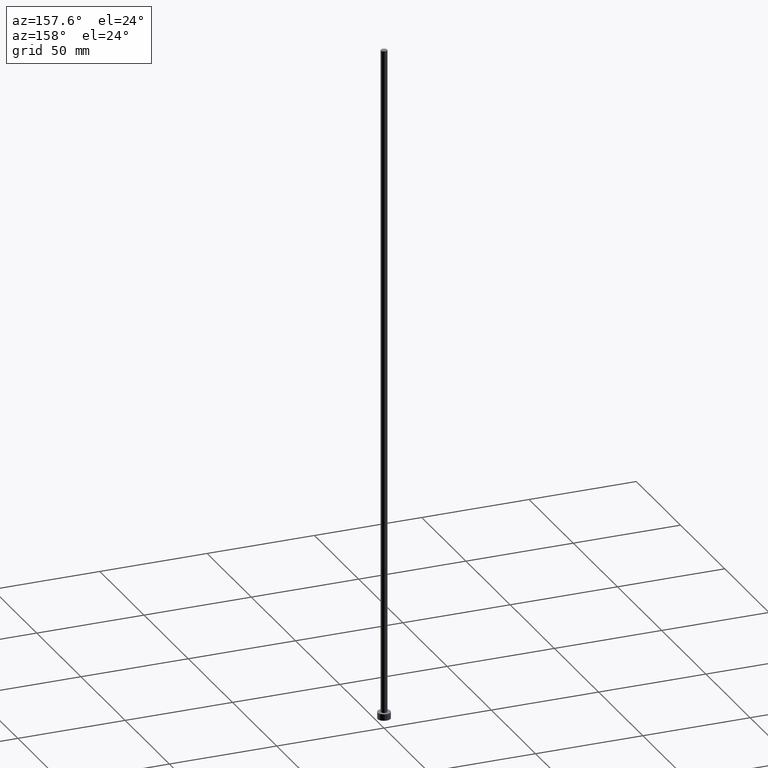
[diagram: clean part render]
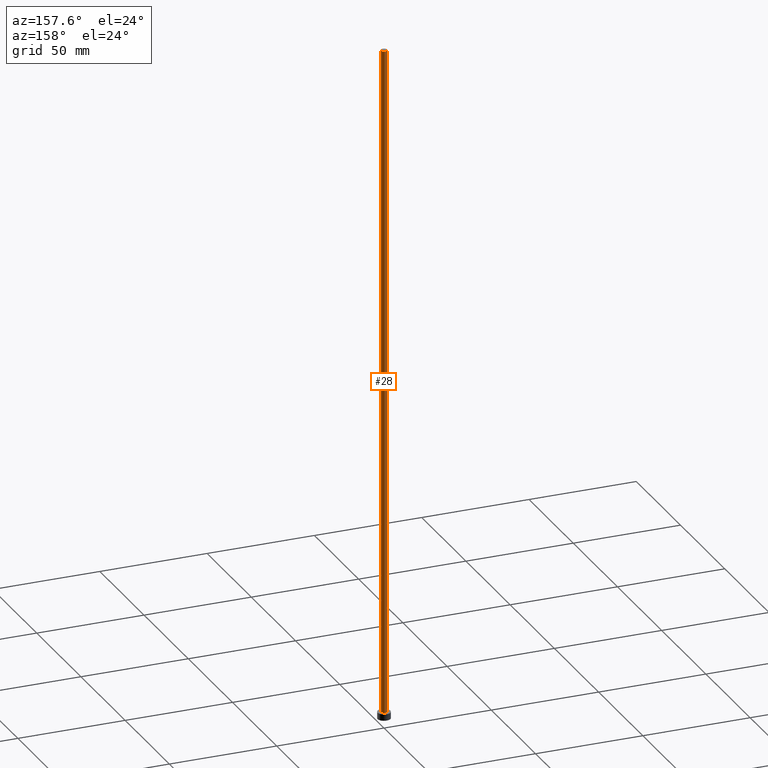
[diagram: same view with one face highlighted and labeled with its STEP entity id]
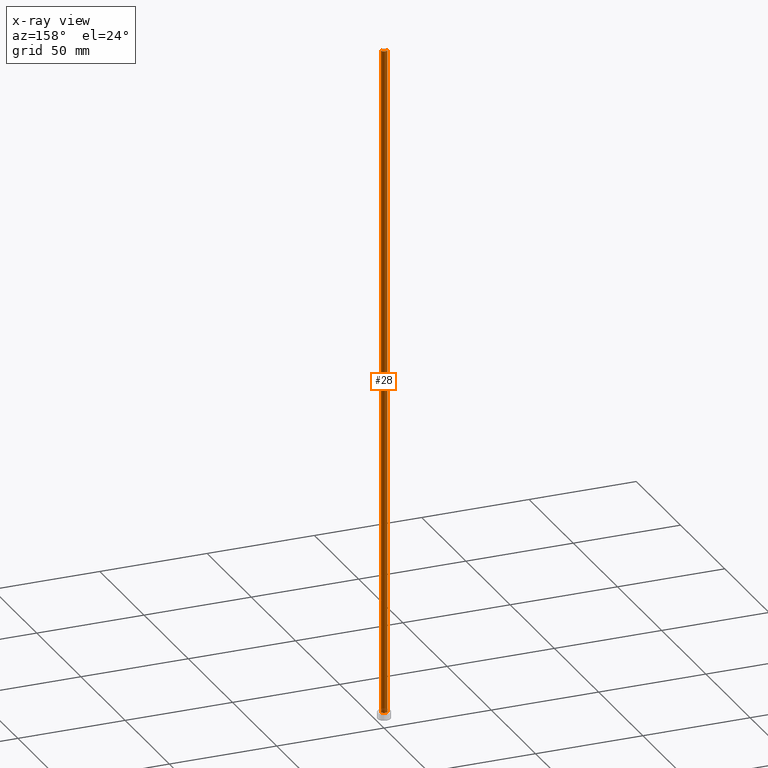
[diagram: x-ray of the same camera — body ghosted, the highlighted face saturated]
A machine part, auxiliary view. The second image highlights one B-rep face of the part: STEP entity #28.
The next image is the same camera in x-ray: the body ghosted, the highlighted face saturated — about 0% of this face is hidden behind the body in this view.
In plain terms, the highlighted cylindrical surface (edge-blend (fillet) strip) has radius 1.5 mm, axis along (-0, -0, -1).
Its self-contained STEP definition (entity closure, byte-faithful):
#10 = CARTESIAN_POINT ( 'NONE',  ( 1.500000000000000222, 1.836970198721030181E-16, 315.0000000000000000 ) ) ;
#14 = DIRECTION ( 'NONE',  ( -0.000000000000000000, -0.000000000000000000, -1.000000000000000000 ) ) ;
#16 = DIRECTION ( 'NONE',  ( 0.000000000000000000, 0.000000000000000000, 1.000000000000000000 ) ) ;
#28 = ADVANCED_FACE ( 'NONE', ( #229 ), #230, .T. ) ;
#29 = CIRCLE ( 'NONE', #167, 1.500000000000000222 ) ;
#31 = EDGE_LOOP ( 'NONE', ( #117, #137, #160, #74 ) ) ;
#37 = DIRECTION ( 'NONE',  ( -0.000000000000000000, -0.000000000000000000, -1.000000000000000000 ) ) ;
#38 = EDGE_CURVE ( 'NONE', #224, #135, #190, .T. ) ;
#39 = CARTESIAN_POINT ( 'NONE',  ( -1.500000000000000222, 0.000000000000000000, 315.0000000000000000 ) ) ;
#57 = EDGE_CURVE ( 'NONE', #178, #224, #76, .T. ) ;
#58 = DIRECTION ( 'NONE',  ( -1.000000000000000000, 0.000000000000000000, 0.000000000000000000 ) ) ;
#60 = EDGE_CURVE ( 'NONE', #215, #135, #140, .T. ) ;
#74 = ORIENTED_EDGE ( 'NONE', *, *, #60, .F. ) ;
#76 = LINE ( 'NONE', #126, #114 ) ;
#82 = EDGE_CURVE ( 'NONE', #178, #215, #29, .T. ) ;
#110 = DIRECTION ( 'NONE',  ( 1.000000000000000000, 0.000000000000000000, 0.000000000000000000 ) ) ;
#112 = DIRECTION ( 'NONE',  ( 1.000000000000000000, 0.000000000000000000, 0.000000000000000000 ) ) ;
#114 = VECTOR ( 'NONE', #242, 1000.000000000000000 ) ;
#117 = ORIENTED_EDGE ( 'NONE', *, *, #82, .F. ) ;
#124 = CARTESIAN_POINT ( 'NONE',  ( 0.000000000000000000, 0.000000000000000000, 3.000000000000000000 ) ) ;
#126 = CARTESIAN_POINT ( 'NONE',  ( 1.500000000000000222, 1.836970198721030181E-16, 315.0000000000000000 ) ) ;
#135 = VERTEX_POINT ( 'NONE', #219 ) ;
#137 = ORIENTED_EDGE ( 'NONE', *, *, #57, .T. ) ;
#140 = LINE ( 'NONE', #142, #143 ) ;
#142 = CARTESIAN_POINT ( 'NONE',  ( -1.500000000000000222, 0.000000000000000000, 315.0000000000000000 ) ) ;
#143 = VECTOR ( 'NONE', #37, 1000.000000000000000 ) ;
#151 = CARTESIAN_POINT ( 'NONE',  ( 1.500000000000000222, 1.836970198721030181E-16, 3.000000000000000000 ) ) ;
#160 = ORIENTED_EDGE ( 'NONE', *, *, #38, .T. ) ;
#167 = AXIS2_PLACEMENT_3D ( 'NONE', #209, #16, #112 ) ;
#178 = VERTEX_POINT ( 'NONE', #10 ) ;
#184 = CARTESIAN_POINT ( 'NONE',  ( 0.000000000000000000, 0.000000000000000000, 315.0000000000000000 ) ) ;
#187 = AXIS2_PLACEMENT_3D ( 'NONE', #184, #14, #58 ) ;
#190 = CIRCLE ( 'NONE', #250, 1.500000000000000222 ) ;
#209 = CARTESIAN_POINT ( 'NONE',  ( 0.000000000000000000, 0.000000000000000000, 315.0000000000000000 ) ) ;
#210 = DIRECTION ( 'NONE',  ( 0.000000000000000000, 0.000000000000000000, 1.000000000000000000 ) ) ;
#215 = VERTEX_POINT ( 'NONE', #39 ) ;
#219 = CARTESIAN_POINT ( 'NONE',  ( -1.500000000000000222, 0.000000000000000000, 3.000000000000000000 ) ) ;
#224 = VERTEX_POINT ( 'NONE', #151 ) ;
#229 = FACE_OUTER_BOUND ( 'NONE', #31, .T. ) ;
#230 = CYLINDRICAL_SURFACE ( 'NONE', #187, 1.500000000000000222 ) ;
#242 = DIRECTION ( 'NONE',  ( -0.000000000000000000, -0.000000000000000000, -1.000000000000000000 ) ) ;
#250 = AXIS2_PLACEMENT_3D ( 'NONE', #124, #210, #110 ) ;